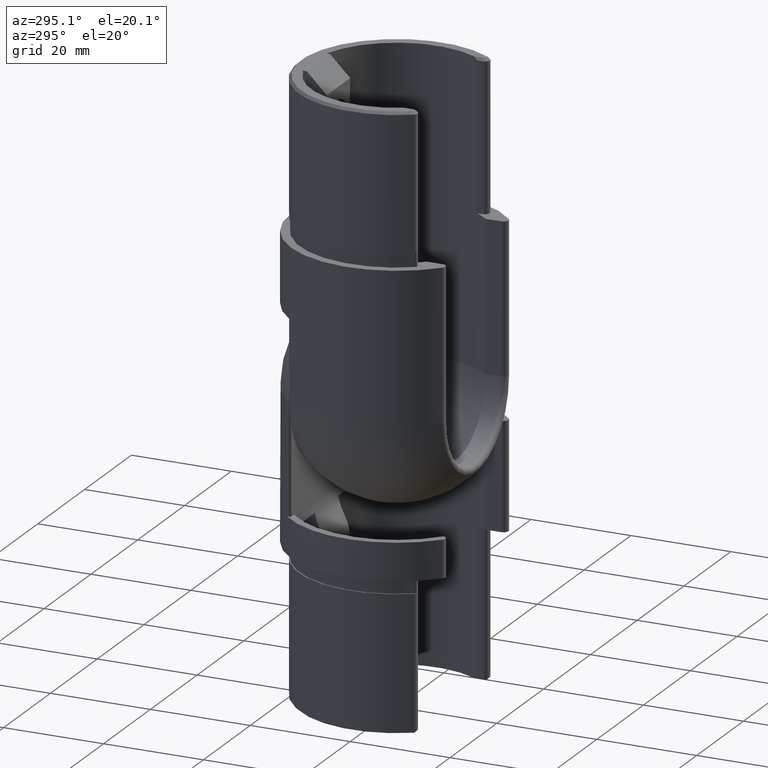
[diagram: clean part render]
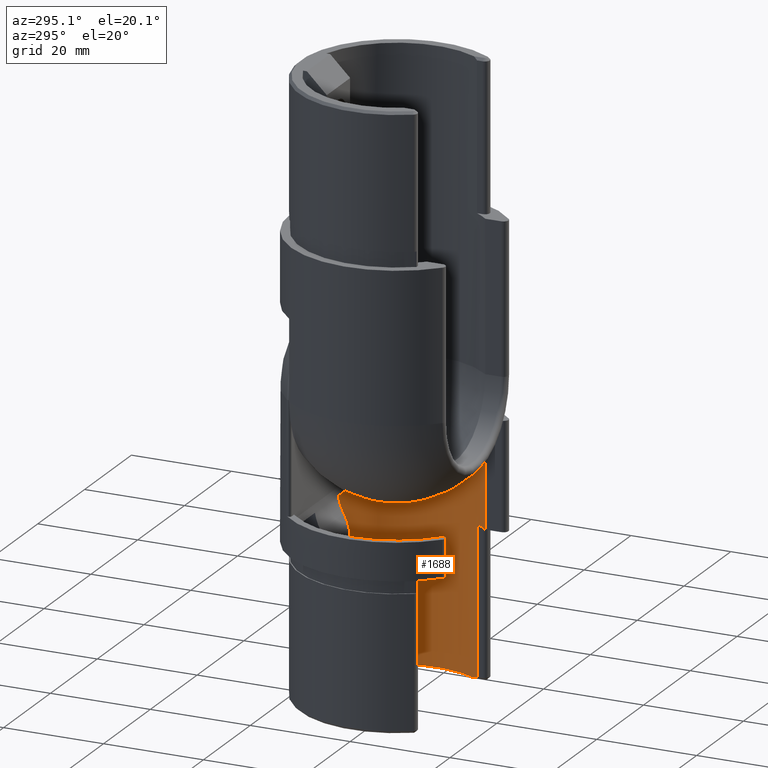
[diagram: same view with one face highlighted and labeled with its STEP entity id]
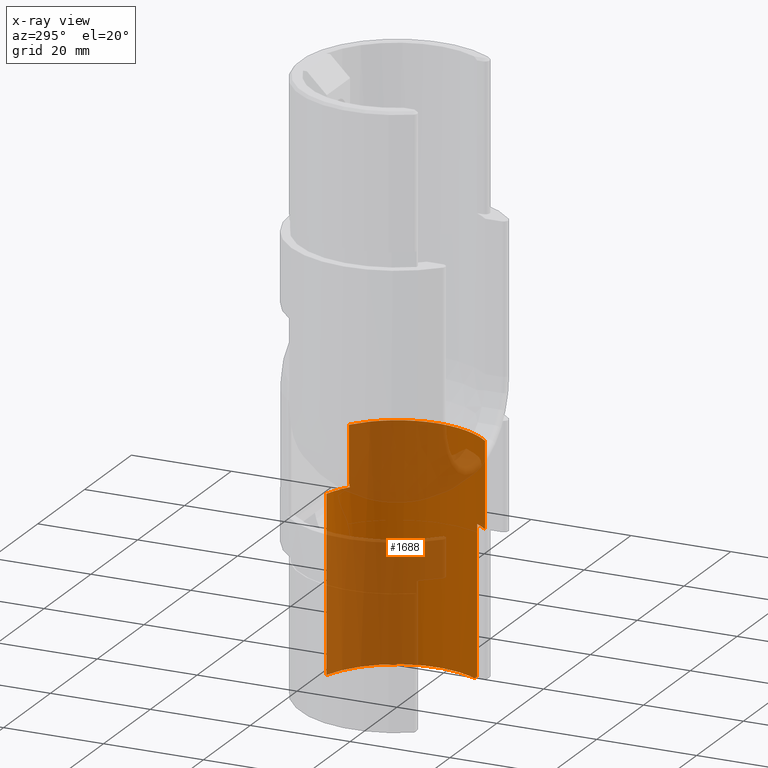
[diagram: x-ray of the same camera — body ghosted, the highlighted face saturated]
A machine part, auxiliary view. The second image highlights one B-rep face of the part: STEP entity #1688.
The next image is the same camera in x-ray: the body ghosted, the highlighted face saturated — about 60% of this face is hidden behind the body in this view.
In plain terms, the highlighted cylindrical surface (partial cylindrical patch) has radius 17.2 mm, axis along (0, 0, -1).
Its self-contained STEP definition (entity closure, byte-faithful):
#910 = LINE ( 'NONE', #17383, #2663 ) ;
#1038 = CARTESIAN_POINT ( 'NONE',  ( -9.705668446840732600, 14.20000000000001000, -6.614378277661474600 ) ) ;
#1132 = CARTESIAN_POINT ( 'NONE',  ( -14.67451853508820700, -8.977960723901096800, 29.67451853508821500 ) ) ;
#1680 = EDGE_CURVE ( 'NONE', #7353, #5105, #4519, .T. ) ;
#1688 = ADVANCED_FACE ( 'NONE', ( #17859 ), #16429, .F. ) ;
#2435 = CARTESIAN_POINT ( 'NONE',  ( -14.49999999999999800, -9.251486367065567200, 0.0000000000000000000 ) ) ;
#2437 = CARTESIAN_POINT ( 'NONE',  ( -12.49999999999999800, -11.81482120050913000, -30.00000000000000000 ) ) ;
#2621 = DIRECTION ( 'NONE',  ( -0.0000000000000000000, -0.0000000000000000000, -1.000000000000000000 ) ) ;
#2663 = VECTOR ( 'NONE', #19494, 1000.000000000000000 ) ;
#2915 = ORIENTED_EDGE ( 'NONE', *, *, #22202, .T. ) ;
#3090 = CARTESIAN_POINT ( 'NONE',  ( -9.705668446840732600, 14.20000000000000100, 56.42302876928887700 ) ) ;
#3093 = DIRECTION ( 'NONE',  ( 0.0000000000000000000, 0.0000000000000000000, 1.000000000000000000 ) ) ;
#3258 = AXIS2_PLACEMENT_3D ( 'NONE', #10336, #3093, #17664 ) ;
#3449 = DIRECTION ( 'NONE',  ( 1.000000000000000000, 0.0000000000000000000, 0.0000000000000000000 ) ) ;
#3808 = AXIS2_PLACEMENT_3D ( 'NONE', #20406, #12689, #18274 ) ;
#4519 = CIRCLE ( 'NONE', #3258, 17.19999999999999900 ) ;
#4697 = VERTEX_POINT ( 'NONE', #21306 ) ;
#4963 = CARTESIAN_POINT ( 'NONE',  ( -9.705668446840732600, 14.20000000000000100, -6.065309788674174900 ) ) ;
#5093 = VERTEX_POINT ( 'NONE', #11547 ) ;
#5105 = VERTEX_POINT ( 'NONE', #20656 ) ;
#5244 = VERTEX_POINT ( 'NONE', #12194 ) ;
#5421 = EDGE_CURVE ( 'NONE', #4697, #22013, #8952, .T. ) ;
#6259 = CIRCLE ( 'NONE', #11307, 17.19999999999999900 ) ;
#6312 = ORIENTED_EDGE ( 'NONE', *, *, #24008, .F. ) ;
#7353 = VERTEX_POINT ( 'NONE', #14025 ) ;
#7610 = CARTESIAN_POINT ( 'NONE',  ( -5.000000000000000900, 16.45721726173656700, 30.00000000000000000 ) ) ;
#8091 = EDGE_CURVE ( 'NONE', #5093, #15655, #17296, .T. ) ;
#8512 = EDGE_CURVE ( 'NONE', #5093, #12966, #6259, .T. ) ;
#8578 = EDGE_CURVE ( 'NONE', #15655, #22013, #21978, .T. ) ;
#8589 = CARTESIAN_POINT ( 'NONE',  ( 0.0000000000000000000, 0.0000000000000000000, -30.00000000000000000 ) ) ;
#8827 = DIRECTION ( 'NONE',  ( 0.0000000000000000000, 0.0000000000000000000, 1.000000000000000000 ) ) ;
#8952 = LINE ( 'NONE', #16224, #15060 ) ;
#9243 = VECTOR ( 'NONE', #16579, 1000.000000000000000 ) ;
#10336 = CARTESIAN_POINT ( 'NONE',  ( 0.0000000000000000000, 0.0000000000000000000, -5.000000000000004400 ) ) ;
#11079 = CARTESIAN_POINT ( 'NONE',  ( 0.0000000000000000000, 0.0000000000000000000, -17.10000000000000500 ) ) ;
#11307 = AXIS2_PLACEMENT_3D ( 'NONE', #11079, #23984, #18190 ) ;
#11547 = CARTESIAN_POINT ( 'NONE',  ( -12.49999999999999800, -11.81482120050913000, -17.10000000000000100 ) ) ;
#12194 = CARTESIAN_POINT ( 'NONE',  ( -14.99999999999998600, -8.416650165000351800, 30.00000000000000000 ) ) ;
#12467 = EDGE_CURVE ( 'NONE', #15617, #7353, #910, .T. ) ;
#12689 = DIRECTION ( 'NONE',  ( -0.0000000000000000000, -0.0000000000000000000, -1.000000000000000000 ) ) ;
#12736 = LINE ( 'NONE', #3090, #9243 ) ;
#12800 = ORIENTED_EDGE ( 'NONE', *, *, #13925, .F. ) ;
#12966 = VERTEX_POINT ( 'NONE', #23094 ) ;
#13009 = VERTEX_POINT ( 'NONE', #19486 ) ;
#13705 = AXIS2_PLACEMENT_3D ( 'NONE', #8589, #8827, #3449 ) ;
#13770 = CARTESIAN_POINT ( 'NONE',  ( 0.0000000000000000000, 0.0000000000000000000, 30.00000000000000000 ) ) ;
#13925 = EDGE_CURVE ( 'NONE', #5244, #15617, #16868, .T. ) ;
#13998 = CARTESIAN_POINT ( 'NONE',  ( -9.894849919194348000, 14.06882884523867000, -5.000000000000004400 ) ) ;
#14025 = CARTESIAN_POINT ( 'NONE',  ( -5.000000000000000900, 16.45721726173656700, -5.000000000000004400 ) ) ;
#14152 = CARTESIAN_POINT ( 'NONE',  ( -9.772119261953449200, 14.15514743275164400, -5.527672713462353100 ) ) ;
#14315 = CARTESIAN_POINT ( 'NONE',  ( -14.99999999999998600, -8.416650165000351800, 30.00000000000000000 ) ) ;
#14504 = ORIENTED_EDGE ( 'NONE', *, *, #8091, .F. ) ;
#15014 = EDGE_LOOP ( 'NONE', ( #2915, #18811, #17932, #12800, #18189, #22520, #23758, #14504, #18905, #6312 ) ) ;
#15060 = VECTOR ( 'NONE', #16135, 1000.000000000000000 ) ;
#15388 = CARTESIAN_POINT ( 'NONE',  ( -12.49999999999999800, -11.81482120050913000, 0.0000000000000000000 ) ) ;
#15617 = VERTEX_POINT ( 'NONE', #7610 ) ;
#15629 = DIRECTION ( 'NONE',  ( 1.000000000000000000, 0.0000000000000000000, 0.0000000000000000000 ) ) ;
#15655 = VERTEX_POINT ( 'NONE', #15388 ) ;
#16135 = DIRECTION ( 'NONE',  ( -0.0000000000000000000, -0.0000000000000000000, -1.000000000000000000 ) ) ;
#16224 = CARTESIAN_POINT ( 'NONE',  ( -14.50000000000000000, -9.251486367065563600, 30.00000000000000000 ) ) ;
#16348 = CARTESIAN_POINT ( 'NONE',  ( -14.50000000000000000, -9.251486367065563600, 29.49999999999999600 ) ) ;
#16429 = CYLINDRICAL_SURFACE ( 'NONE', #13705, 17.19999999999999900 ) ;
#16579 = DIRECTION ( 'NONE',  ( 0.0000000000000000000, 1.251002506714043800E-016, -1.000000000000000000 ) ) ;
#16723 = VECTOR ( 'NONE', #21059, 1000.000000000000000 ) ;
#16789 = EDGE_CURVE ( 'NONE', #5244, #4697, #22587, .T. ) ;
#16868 = CIRCLE ( 'NONE', #19598, 17.19999999999999900 ) ;
#17296 = LINE ( 'NONE', #2437, #16723 ) ;
#17383 = CARTESIAN_POINT ( 'NONE',  ( -5.000000000000000900, 16.45721726173656700, 30.00000000000000000 ) ) ;
#17664 = DIRECTION ( 'NONE',  ( 1.000000000000000000, 0.0000000000000000000, 0.0000000000000000000 ) ) ;
#17859 = FACE_OUTER_BOUND ( 'NONE', #15014, .T. ) ;
#17932 = ORIENTED_EDGE ( 'NONE', *, *, #12467, .F. ) ;
#18189 = ORIENTED_EDGE ( 'NONE', *, *, #16789, .T. ) ;
#18190 = DIRECTION ( 'NONE',  ( -1.000000000000000000, 0.0000000000000000000, 0.0000000000000000000 ) ) ;
#18274 = DIRECTION ( 'NONE',  ( 1.000000000000000000, 0.0000000000000000000, 0.0000000000000000000 ) ) ;
#18811 = ORIENTED_EDGE ( 'NONE', *, *, #1680, .F. ) ;
#18905 = ORIENTED_EDGE ( 'NONE', *, *, #8512, .T. ) ;
#19483 = B_SPLINE_CURVE_WITH_KNOTS ( 'NONE', 3,
 ( #1038, #4963, #14152, #13998 ),
 .UNSPECIFIED., .F., .F.,
 ( 4, 4 ),
 ( 1.734723475976806900E-018, 0.001630709270442934000 ),
 .UNSPECIFIED. ) ;
#19486 = CARTESIAN_POINT ( 'NONE',  ( -9.705668446840732600, 14.20000000000001000, -6.614378277661474600 ) ) ;
#19494 = DIRECTION ( 'NONE',  ( -0.0000000000000000000, -0.0000000000000000000, -1.000000000000000000 ) ) ;
#19598 = AXIS2_PLACEMENT_3D ( 'NONE', #13770, #2621, #15629 ) ;
#20406 = CARTESIAN_POINT ( 'NONE',  ( 0.0000000000000000000, 0.0000000000000000000, 0.0000000000000000000 ) ) ;
#20656 = CARTESIAN_POINT ( 'NONE',  ( -9.894849919194348000, 14.06882884523867000, -5.000000000000004400 ) ) ;
#21059 = DIRECTION ( 'NONE',  ( 0.0000000000000000000, 0.0000000000000000000, 1.000000000000000000 ) ) ;
#21306 = CARTESIAN_POINT ( 'NONE',  ( -14.50000000000000000, -9.251486367065563600, 29.49999999999999600 ) ) ;
#21978 = CIRCLE ( 'NONE', #3808, 17.19999999999999900 ) ;
#22013 = VERTEX_POINT ( 'NONE', #2435 ) ;
#22202 = EDGE_CURVE ( 'NONE', #13009, #5105, #19483, .T. ) ;
#22520 = ORIENTED_EDGE ( 'NONE', *, *, #5421, .T. ) ;
#22587 =( BOUNDED_CURVE ( )  B_SPLINE_CURVE ( 3, ( #14315, #23441, #1132, #16348 ),
 .UNSPECIFIED., .F., .F. ) 
 B_SPLINE_CURVE_WITH_KNOTS ( ( 4, 4 ),
 ( 0.5113329365014623900, 0.5679168989289508100 ),
 .UNSPECIFIED. ) 
 CURVE ( )  GEOMETRIC_REPRESENTATION_ITEM ( )  RATIONAL_B_SPLINE_CURVE ( ( 1.000000000000000000, 0.9997332057296952600, 0.9997332057296952600, 1.000000000000000000 ) ) 
 REPRESENTATION_ITEM ( '' )  );
#23094 = CARTESIAN_POINT ( 'NONE',  ( -9.705668446840741500, 14.19999999999999800, -17.09999999999999800 ) ) ;
#23441 = CARTESIAN_POINT ( 'NONE',  ( -14.84122967933294600, -8.699607726894635500, 29.84122967933295800 ) ) ;
#23758 = ORIENTED_EDGE ( 'NONE', *, *, #8578, .F. ) ;
#23984 = DIRECTION ( 'NONE',  ( 0.0000000000000000000, 0.0000000000000000000, -1.000000000000000000 ) ) ;
#24008 = EDGE_CURVE ( 'NONE', #13009, #12966, #12736, .T. ) ;